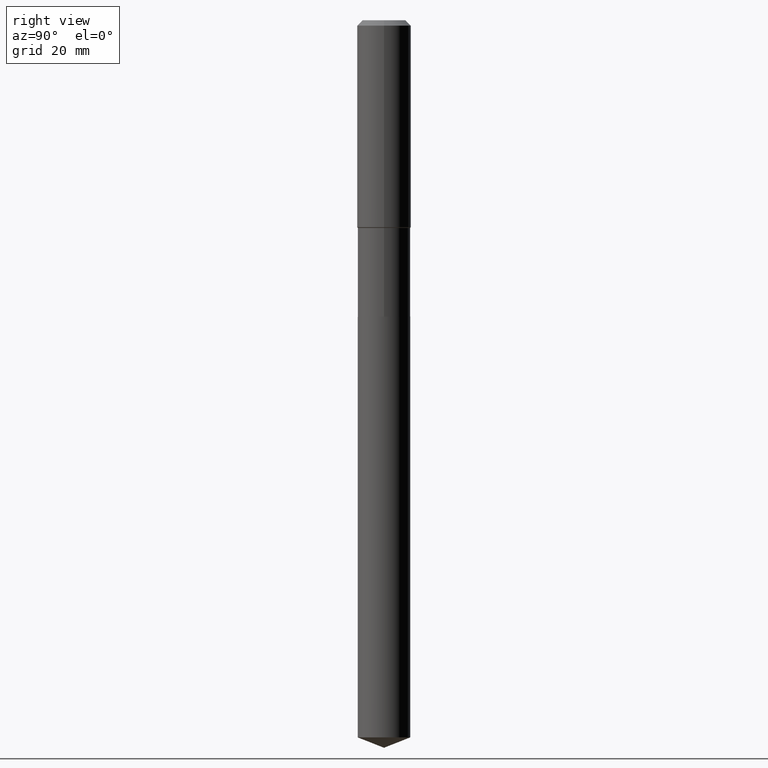
[diagram: clean part render]
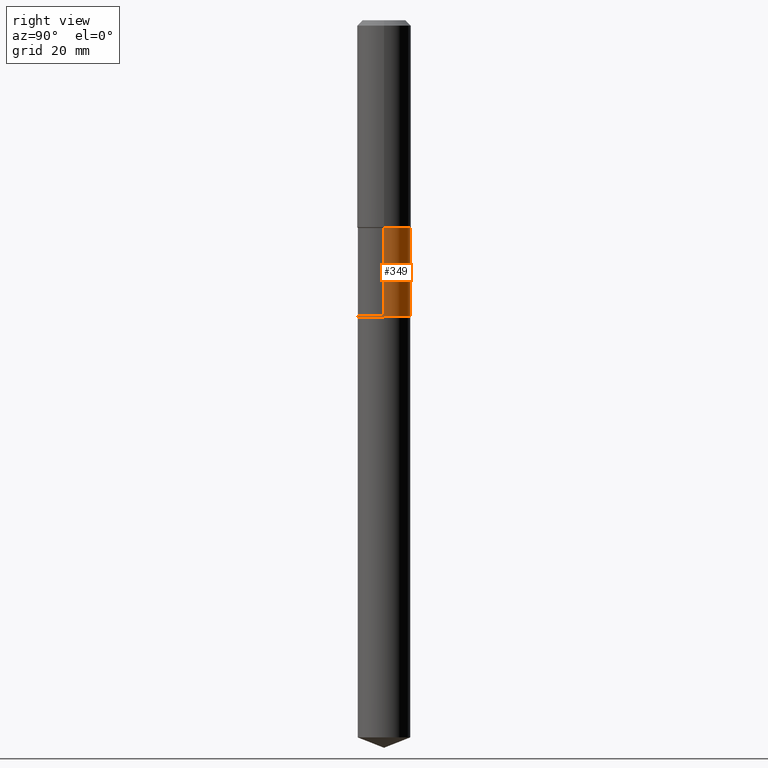
[diagram: same view with one face highlighted and labeled with its STEP entity id]
A machine part, right view. The second image highlights one B-rep face of the part: STEP entity #349.
In plain terms, the highlighted cylindrical surface (edge-blend (fillet) strip) has radius 5.8496 mm, axis along (-0, 0, 1).
Its self-contained STEP definition (entity closure, byte-faithful):
#5 = EDGE_CURVE ( 'NONE', #479, #179, #199, .T. ) ;
#11 = AXIS2_PLACEMENT_3D ( 'NONE', #13, #235, #162 ) ;
#13 = CARTESIAN_POINT ( 'NONE',  ( 4.452220508540662569E-29, -6.356590925497835963E-15, -1.820600000000001328 ) ) ;
#35 = ORIENTED_EDGE ( 'NONE', *, *, #5, .T. ) ;
#53 = VECTOR ( 'NONE', #397, 39.37007874015748143 ) ;
#56 = EDGE_CURVE ( 'NONE', #179, #90, #152, .T. ) ;
#59 = VECTOR ( 'NONE', #192, 39.37007874015748143 ) ;
#81 = AXIS2_PLACEMENT_3D ( 'NONE', #232, #487, #460 ) ;
#90 = VERTEX_POINT ( 'NONE', #458 ) ;
#121 = CARTESIAN_POINT ( 'NONE',  ( -0.2302999999999999214, 1.636379920455510170E-15, -1.132830751285704470E-29 ) ) ;
#127 = CARTESIAN_POINT ( 'NONE',  ( 0.2302999999999998937, -7.964767230168983427E-15, -1.820600000000001328 ) ) ;
#152 = LINE ( 'NONE', #121, #59 ) ;
#162 = DIRECTION ( 'NONE',  ( 1.000000000000000000, -6.982962677686269077E-15, 0.000000000000000000 ) ) ;
#170 = CARTESIAN_POINT ( 'NONE',  ( 0.000000000000000000, 0.000000000000000000, 0.000000000000000000 ) ) ;
#172 = AXIS2_PLACEMENT_3D ( 'NONE', #170, #211, #445 ) ;
#179 = VERTEX_POINT ( 'NONE', #309 ) ;
#192 = DIRECTION ( 'NONE',  ( -2.445468806185136877E-29, 3.491481338843145188E-15, 1.000000000000000000 ) ) ;
#199 = CIRCLE ( 'NONE', #81, 0.2303000000000000047 ) ;
#205 = EDGE_CURVE ( 'NONE', #209, #90, #300, .T. ) ;
#209 = VERTEX_POINT ( 'NONE', #127 ) ;
#211 = DIRECTION ( 'NONE',  ( -2.445468806185136597E-29, 3.491481338843145583E-15, 1.000000000000000000 ) ) ;
#232 = CARTESIAN_POINT ( 'NONE',  ( 6.353083411588368076E-29, -9.070519370180611907E-15, -2.597900000000000542 ) ) ;
#235 = DIRECTION ( 'NONE',  ( -2.445468806185136597E-29, 3.491481338843145583E-15, 1.000000000000000000 ) ) ;
#252 = ORIENTED_EDGE ( 'NONE', *, *, #56, .T. ) ;
#266 = CARTESIAN_POINT ( 'NONE',  ( 0.2303000000000000047, -1.067869567485175779E-14, -2.597900000000000542 ) ) ;
#293 = ORIENTED_EDGE ( 'NONE', *, *, #205, .F. ) ;
#300 = CIRCLE ( 'NONE', #11, 0.2302999999999998937 ) ;
#309 = CARTESIAN_POINT ( 'NONE',  ( -0.2302999999999999770, -6.077175227383711991E-15, -2.597900000000000542 ) ) ;
#318 = FACE_OUTER_BOUND ( 'NONE', #423, .T. ) ;
#322 = ORIENTED_EDGE ( 'NONE', *, *, #399, .F. ) ;
#349 = ADVANCED_FACE ( 'NONE', ( #318 ), #404, .T. ) ;
#359 = CARTESIAN_POINT ( 'NONE',  ( 0.2302999999999999214, -1.608176304671146674E-15, 1.122983511465803578E-29 ) ) ;
#397 = DIRECTION ( 'NONE',  ( -2.445468806185136877E-29, 3.491481338843145188E-15, 1.000000000000000000 ) ) ;
#399 = EDGE_CURVE ( 'NONE', #479, #209, #470, .T. ) ;
#404 = CYLINDRICAL_SURFACE ( 'NONE', #172, 0.2302999999999999214 ) ;
#423 = EDGE_LOOP ( 'NONE', ( #35, #252, #293, #322 ) ) ;
#445 = DIRECTION ( 'NONE',  ( 1.000000000000000000, -6.982962677686266711E-15, 4.876176775795935793E-29 ) ) ;
#458 = CARTESIAN_POINT ( 'NONE',  ( -0.2302999999999998937, -6.077175227383712779E-15, -1.820600000000001328 ) ) ;
#460 = DIRECTION ( 'NONE',  ( 1.000000000000000000, -6.982962677686265922E-15, 0.000000000000000000 ) ) ;
#470 = LINE ( 'NONE', #359, #53 ) ;
#479 = VERTEX_POINT ( 'NONE', #266 ) ;
#487 = DIRECTION ( 'NONE',  ( -2.445468806185136597E-29, 3.491481338843145583E-15, 1.000000000000000000 ) ) ;